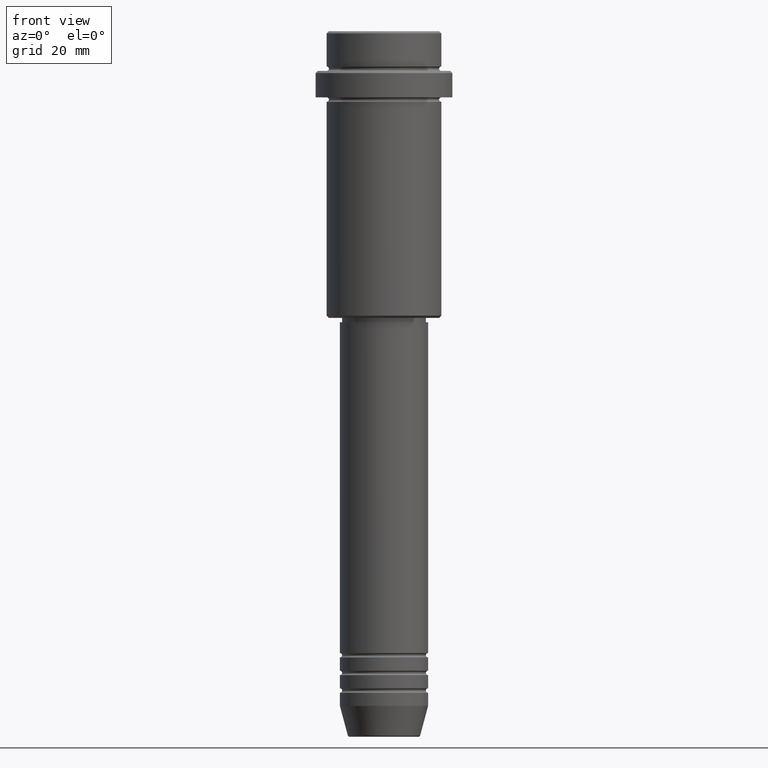
[diagram: clean part render]
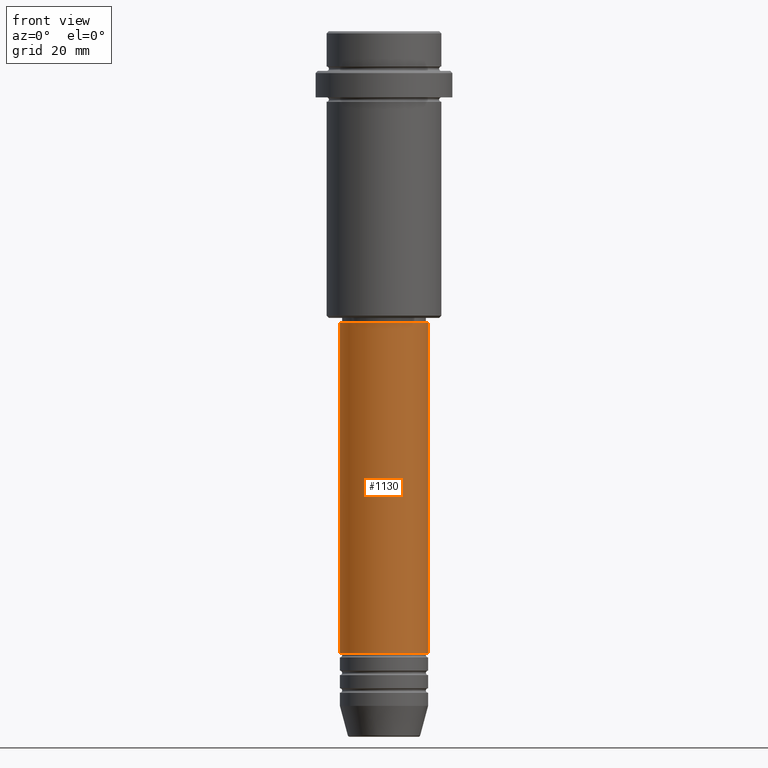
[diagram: same view with one face highlighted and labeled with its STEP entity id]
A machine part, front view. The second image highlights one B-rep face of the part: STEP entity #1130.
In plain terms, the highlighted cylindrical surface (partial cylindrical patch) has radius 10 mm, axis along (-0, -0, 1).
Its self-contained STEP definition (entity closure, byte-faithful):
#17 = DIRECTION ( 'NONE',  ( -0.000000000000000000, -0.000000000000000000, 1.000000000000000000 ) ) ;
#22 = EDGE_CURVE ( 'NONE', #825, #1109, #1241, .T. ) ;
#54 = AXIS2_PLACEMENT_3D ( 'NONE', #1148, #1044, #480 ) ;
#112 = CARTESIAN_POINT ( 'NONE',  ( 10.00000000000000000, 0.000000000000000000, -140.9999999999999147 ) ) ;
#139 = DIRECTION ( 'NONE',  ( -0.000000000000000000, -0.000000000000000000, 1.000000000000000000 ) ) ;
#172 = CYLINDRICAL_SURFACE ( 'NONE', #1363, 10.00000000000000178 ) ;
#196 = EDGE_CURVE ( 'NONE', #825, #711, #932, .T. ) ;
#272 = FACE_OUTER_BOUND ( 'NONE', #555, .T. ) ;
#359 = DIRECTION ( 'NONE',  ( 1.000000000000000000, 0.000000000000000000, 0.000000000000000000 ) ) ;
#390 = CARTESIAN_POINT ( 'NONE',  ( 0.000000000000000000, 0.000000000000000000, 0.000000000000000000 ) ) ;
#480 = DIRECTION ( 'NONE',  ( 1.000000000000000000, 0.000000000000000000, 0.000000000000000000 ) ) ;
#520 = VECTOR ( 'NONE', #17, 1000.000000000000000 ) ;
#532 = DIRECTION ( 'NONE',  ( -0.000000000000000000, -0.000000000000000000, 1.000000000000000000 ) ) ;
#555 = EDGE_LOOP ( 'NONE', ( #1118, #1193, #1415, #1133 ) ) ;
#632 = CIRCLE ( 'NONE', #886, 10.00000000000000178 ) ;
#693 = CARTESIAN_POINT ( 'NONE',  ( -10.00000000000000178, 1.224646799147353454E-15, 0.000000000000000000 ) ) ;
#697 = VERTEX_POINT ( 'NONE', #1313 ) ;
#711 = VERTEX_POINT ( 'NONE', #1091 ) ;
#797 = EDGE_CURVE ( 'NONE', #1109, #697, #1023, .T. ) ;
#803 = DIRECTION ( 'NONE',  ( -0.000000000000000000, -0.000000000000000000, 1.000000000000000000 ) ) ;
#825 = VERTEX_POINT ( 'NONE', #833 ) ;
#833 = CARTESIAN_POINT ( 'NONE',  ( -10.00000000000000000, 1.224646799147353256E-15, -140.9999999999999147 ) ) ;
#886 = AXIS2_PLACEMENT_3D ( 'NONE', #1382, #532, #1179 ) ;
#896 = CARTESIAN_POINT ( 'NONE',  ( 10.00000000000000178, 0.000000000000000000, 0.000000000000000000 ) ) ;
#913 = EDGE_CURVE ( 'NONE', #711, #697, #632, .T. ) ;
#932 = LINE ( 'NONE', #693, #1222 ) ;
#1023 = LINE ( 'NONE', #896, #520 ) ;
#1044 = DIRECTION ( 'NONE',  ( -0.000000000000000000, -0.000000000000000000, 1.000000000000000000 ) ) ;
#1091 = CARTESIAN_POINT ( 'NONE',  ( -10.00000000000000178, 1.224646799147353454E-15, -66.00000000000000000 ) ) ;
#1109 = VERTEX_POINT ( 'NONE', #112 ) ;
#1118 = ORIENTED_EDGE ( 'NONE', *, *, #196, .F. ) ;
#1130 = ADVANCED_FACE ( 'NONE', ( #272 ), #172, .T. ) ;
#1133 = ORIENTED_EDGE ( 'NONE', *, *, #913, .F. ) ;
#1148 = CARTESIAN_POINT ( 'NONE',  ( 0.000000000000000000, 0.000000000000000000, -140.9999999999999147 ) ) ;
#1179 = DIRECTION ( 'NONE',  ( 1.000000000000000000, 0.000000000000000000, 0.000000000000000000 ) ) ;
#1193 = ORIENTED_EDGE ( 'NONE', *, *, #22, .T. ) ;
#1222 = VECTOR ( 'NONE', #139, 1000.000000000000000 ) ;
#1241 = CIRCLE ( 'NONE', #54, 10.00000000000000000 ) ;
#1313 = CARTESIAN_POINT ( 'NONE',  ( 10.00000000000000178, 0.000000000000000000, -66.00000000000000000 ) ) ;
#1363 = AXIS2_PLACEMENT_3D ( 'NONE', #390, #803, #359 ) ;
#1382 = CARTESIAN_POINT ( 'NONE',  ( 0.000000000000000000, 0.000000000000000000, -66.00000000000000000 ) ) ;
#1415 = ORIENTED_EDGE ( 'NONE', *, *, #797, .T. ) ;